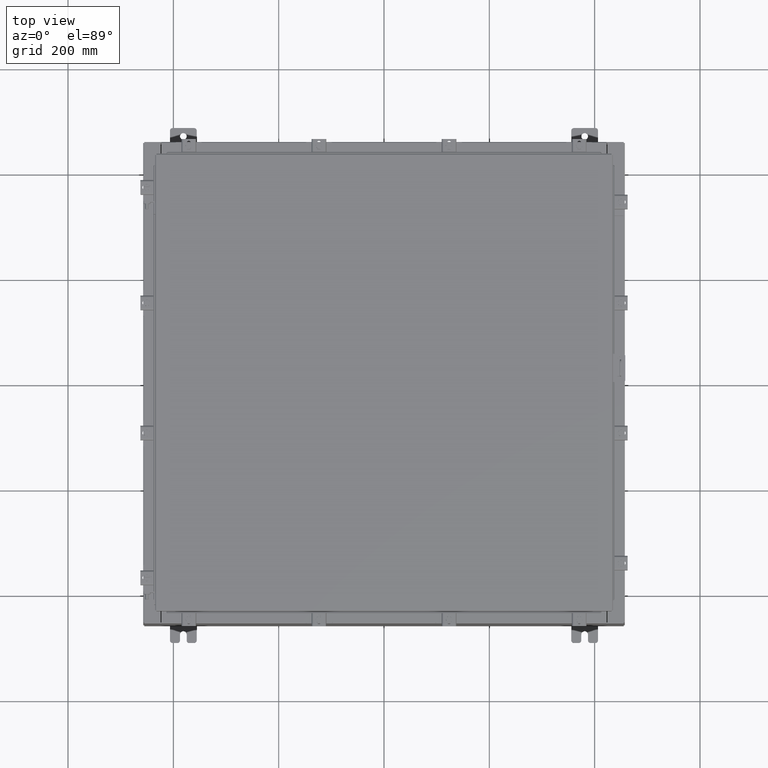
[diagram: clean part render]
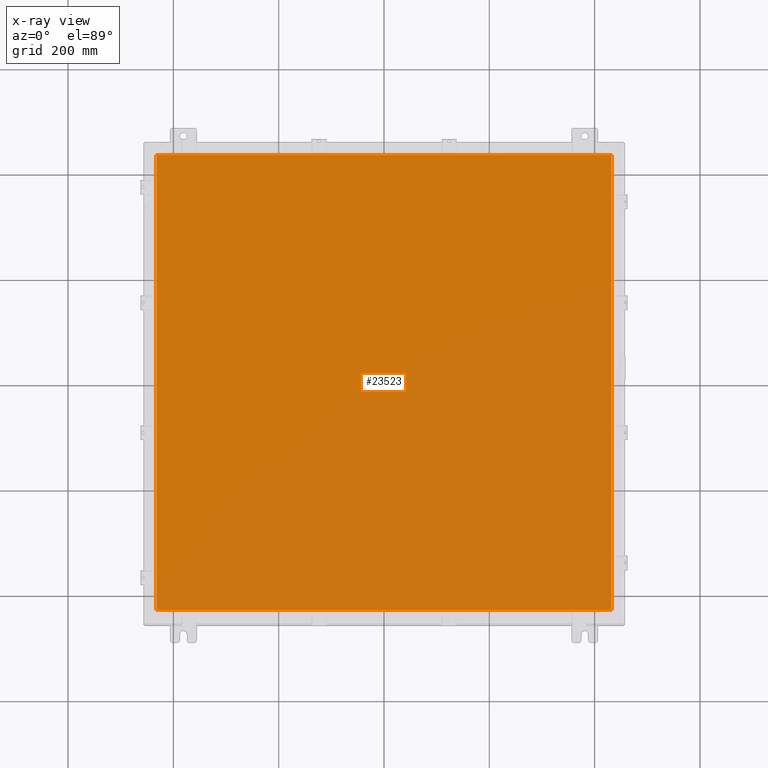
[diagram: x-ray — body ghosted, one internal face saturated and labeled with its STEP entity id]
A machine part, top view, then the same camera in x-ray: the body is ghosted and one INTERNAL B-rep face — a face not visible from any outside direction — is saturated and labeled: STEP entity #23523.
In plain terms, the highlighted planar face has unit normal (0, 0, -1).
Its self-contained STEP definition (entity closure, byte-faithful):
#1208 = LINE ( 'NONE', #18996, #22824 ) ;
#1224 = DIRECTION ( 'NONE',  ( 0.0000000000000000000, 0.0000000000000000000, -1.000000000000000000 ) ) ;
#1951 = ORIENTED_EDGE ( 'NONE', *, *, #13424, .F. ) ;
#4050 = DIRECTION ( 'NONE',  ( -1.000000000000000000, -0.0000000000000000000, -0.0000000000000000000 ) ) ;
#4096 = LINE ( 'NONE', #18727, #24437 ) ;
#4326 = DIRECTION ( 'NONE',  ( 0.0000000000000000000, -1.000000000000000000, 0.0000000000000000000 ) ) ;
#7432 = LINE ( 'NONE', #23215, #11676 ) ;
#7630 = VERTEX_POINT ( 'NONE', #21171 ) ;
#9867 = VECTOR ( 'NONE', #20478, 39.37007874015748100 ) ;
#9905 = VERTEX_POINT ( 'NONE', #25275 ) ;
#11676 = VECTOR ( 'NONE', #14859, 39.37007874015748100 ) ;
#12699 = EDGE_CURVE ( 'NONE', #12787, #9905, #1208, .T. ) ;
#12704 = EDGE_CURVE ( 'NONE', #9905, #7630, #7432, .T. ) ;
#12787 = VERTEX_POINT ( 'NONE', #19281 ) ;
#13424 = EDGE_CURVE ( 'NONE', #21209, #12787, #4096, .T. ) ;
#13747 = CARTESIAN_POINT ( 'NONE',  ( 0.0000000000000000000, 0.0000000000000000000, -0.07470000000000015500 ) ) ;
#14859 = DIRECTION ( 'NONE',  ( 1.000000000000000000, -0.0000000000000000000, -0.0000000000000000000 ) ) ;
#15848 = DIRECTION ( 'NONE',  ( -1.000000000000000000, 0.0000000000000000000, -0.0000000000000000000 ) ) ;
#18135 = EDGE_CURVE ( 'NONE', #7630, #21209, #22353, .T. ) ;
#18333 = ORIENTED_EDGE ( 'NONE', *, *, #12704, .F. ) ;
#18727 = CARTESIAN_POINT ( 'NONE',  ( 17.00630000000000000, 17.00630000000000000, -0.07470000000000015500 ) ) ;
#18996 = CARTESIAN_POINT ( 'NONE',  ( -17.00630000000000000, 17.00630000000000000, -0.07470000000000015500 ) ) ;
#19281 = CARTESIAN_POINT ( 'NONE',  ( -17.00630000000000000, 17.00630000000000000, -0.07470000000000015500 ) ) ;
#19884 = CARTESIAN_POINT ( 'NONE',  ( 17.00630000000000000, 17.00630000000000000, -0.07470000000000015500 ) ) ;
#19986 = PLANE ( 'NONE',  #24101 ) ;
#20478 = DIRECTION ( 'NONE',  ( 0.0000000000000000000, 1.000000000000000000, 0.0000000000000000000 ) ) ;
#21171 = CARTESIAN_POINT ( 'NONE',  ( 17.00630000000000000, -17.00630000000000000, -0.07470000000000015500 ) ) ;
#21209 = VERTEX_POINT ( 'NONE', #19884 ) ;
#22353 = LINE ( 'NONE', #24610, #9867 ) ;
#22497 = ORIENTED_EDGE ( 'NONE', *, *, #18135, .F. ) ;
#22824 = VECTOR ( 'NONE', #4326, 39.37007874015748100 ) ;
#23215 = CARTESIAN_POINT ( 'NONE',  ( -17.00630000000000000, -17.00630000000000000, -0.07470000000000015500 ) ) ;
#23523 = ADVANCED_FACE ( 'NONE', ( #24441 ), #19986, .T. ) ;
#24101 = AXIS2_PLACEMENT_3D ( 'NONE', #13747, #1224, #15848 ) ;
#24437 = VECTOR ( 'NONE', #4050, 39.37007874015748100 ) ;
#24441 = FACE_OUTER_BOUND ( 'NONE', #25025, .T. ) ;
#24610 = CARTESIAN_POINT ( 'NONE',  ( 17.00630000000000000, -17.00630000000000000, -0.07470000000000015500 ) ) ;
#25025 = EDGE_LOOP ( 'NONE', ( #22497, #18333, #25568, #1951 ) ) ;
#25275 = CARTESIAN_POINT ( 'NONE',  ( -17.00630000000000000, -17.00630000000000000, -0.07470000000000015500 ) ) ;
#25568 = ORIENTED_EDGE ( 'NONE', *, *, #12699, .F. ) ;